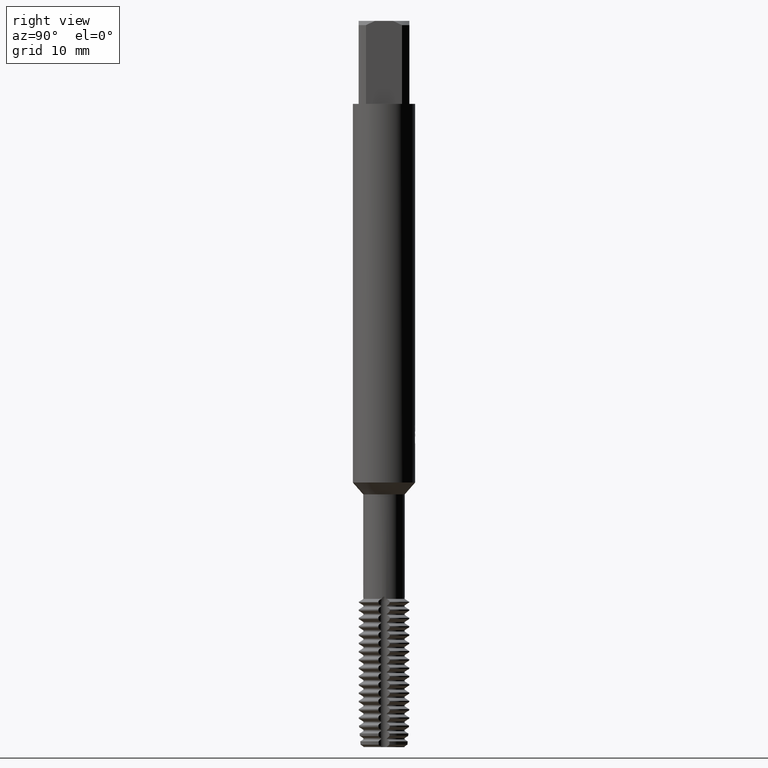
[diagram: clean part render]
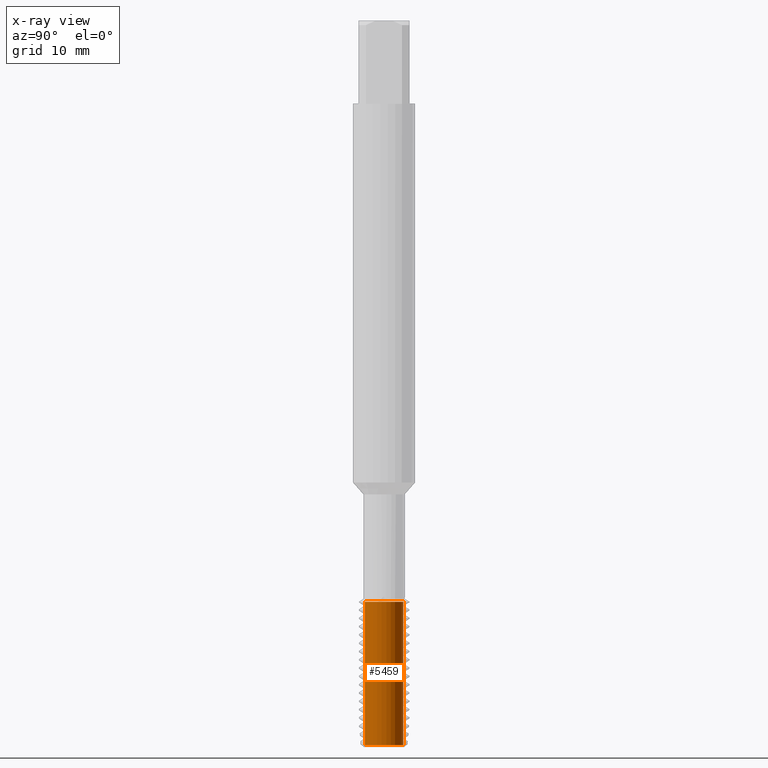
[diagram: x-ray — body ghosted, one internal face saturated and labeled with its STEP entity id]
A machine part, right view, then the same camera in x-ray: the body is ghosted and one INTERNAL B-rep face — a face not visible from any outside direction — is saturated and labeled: STEP entity #5459.
In plain terms, the highlighted cylindrical surface (edge-blend (fillet) strip) has radius 1.8603 mm, axis along (-0, -0, 1).
Its self-contained STEP definition (entity closure, byte-faithful):
#3543=VERTEX_POINT('',#9479);
#5033=EDGE_CURVE('',#6289,#3543,#11108,.T.);
#5385=VERTEX_POINT('',#11489);
#5459=ADVANCED_FACE('',(#11569),#11570,.T.);
#6217=EDGE_CURVE('',#3543,#5385,#12392,.T.);
#6289=VERTEX_POINT('',#12474);
#7029=EDGE_CURVE('',#7663,#6289,#13278,.T.);
#7663=VERTEX_POINT('',#13960);
#8653=EDGE_CURVE('',#7663,#5385,#15021,.T.);
#9479=CARTESIAN_POINT('',(2.27812120276514E-016,-1.86028857,-69.804227858106));
#11108=CIRCLE('',#19444,1.86028857);
#11489=CARTESIAN_POINT('',(2.27812120276514E-016,-1.86028857,-56.0));
#11569=FACE_OUTER_BOUND('',#20370,.T.);
#11570=CYLINDRICAL_SURFACE('',#20371,1.86028857);
#12392=LINE('',#21912,#21913);
#12474=CARTESIAN_POINT('',(0.0,1.86028857,-69.804227858106));
#13278=LINE('',#23484,#23485);
#13960=CARTESIAN_POINT('',(0.0,1.86028857,-56.0));
#15021=CIRCLE('',#26824,1.86028857);
#19444=AXIS2_PLACEMENT_3D('',#29710,#29711,#29712);
#20370=EDGE_LOOP('',(#30314,#30315,#30316,#30317));
#20371=AXIS2_PLACEMENT_3D('',#30318,#30319,#30320);
#21912=CARTESIAN_POINT('',(2.27812120276514E-016,-1.86028857,-62.902113929053));
#21913=VECTOR('',#31245,1.0);
#23484=CARTESIAN_POINT('',(-2.27812120276514E-016,1.86028857,-62.902113929053));
#23485=VECTOR('',#32166,1.0);
#26824=AXIS2_PLACEMENT_3D('',#33868,#33869,#33870);
#29710=CARTESIAN_POINT('',(0.0,0.0,-69.804227858106));
#29711=DIRECTION('',(0.0,0.0,-1.0));
#29712=DIRECTION('',(0.0,1.0,0.0));
#30314=ORIENTED_EDGE('',*,*,#7029,.F.);
#30315=ORIENTED_EDGE('',*,*,#8653,.T.);
#30316=ORIENTED_EDGE('',*,*,#6217,.F.);
#30317=ORIENTED_EDGE('',*,*,#5033,.F.);
#30318=CARTESIAN_POINT('',(0.0,0.0,-62.902113929053));
#30319=DIRECTION('',(-0.0,-0.0,1.0));
#30320=DIRECTION('',(0.0,1.0,0.0));
#31245=DIRECTION('',(-0.0,-0.0,1.0));
#32166=DIRECTION('',(0.0,0.0,-1.0));
#33868=CARTESIAN_POINT('',(0.0,0.0,-56.0));
#33869=DIRECTION('',(0.0,0.0,-1.0));
#33870=DIRECTION('',(0.0,1.0,0.0));